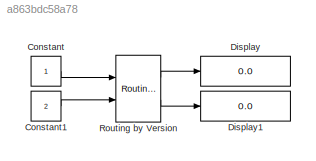
MODEL slx_a863bdc58a78
KIND model
CONFIG AbsTol = 1e-3
CONFIG EnableMultiTasking = off
CONFIG FixedStep = auto
CONFIG MaxStep = auto
CONFIG MinStep = auto
CONFIG RelTol = 1e-3
CONFIG SampleTimeConstraint = Unconstrained
CONFIG SolverName = VariableStepAuto
CONFIG StartTime = 0.0
CONFIG StopTime = 10.0
BLOCK [Constant] Constant
BLOCK [Constant] Constant1
  Value = 2
BLOCK [Display] Display
  Decimation = 1
  Ports = [1]
BLOCK [Display] Display1
  Decimation = 1
  Ports = [1]
BLOCK [Reference] Routing by Version  REF=Vehicle_Visualization/Routing by Version
  Ports = [2, 2]
  SourceBlock = Vehicle_Visualization/Routing by Version
  SourceType = Swap Inputs based on MATLAB Release
LINE Constant1:1 -> Routing by Version:2
LINE Constant:1 -> Routing by Version:1
LINE Routing by Version:1 -> Display:1
LINE Routing by Version:2 -> Display1:1
